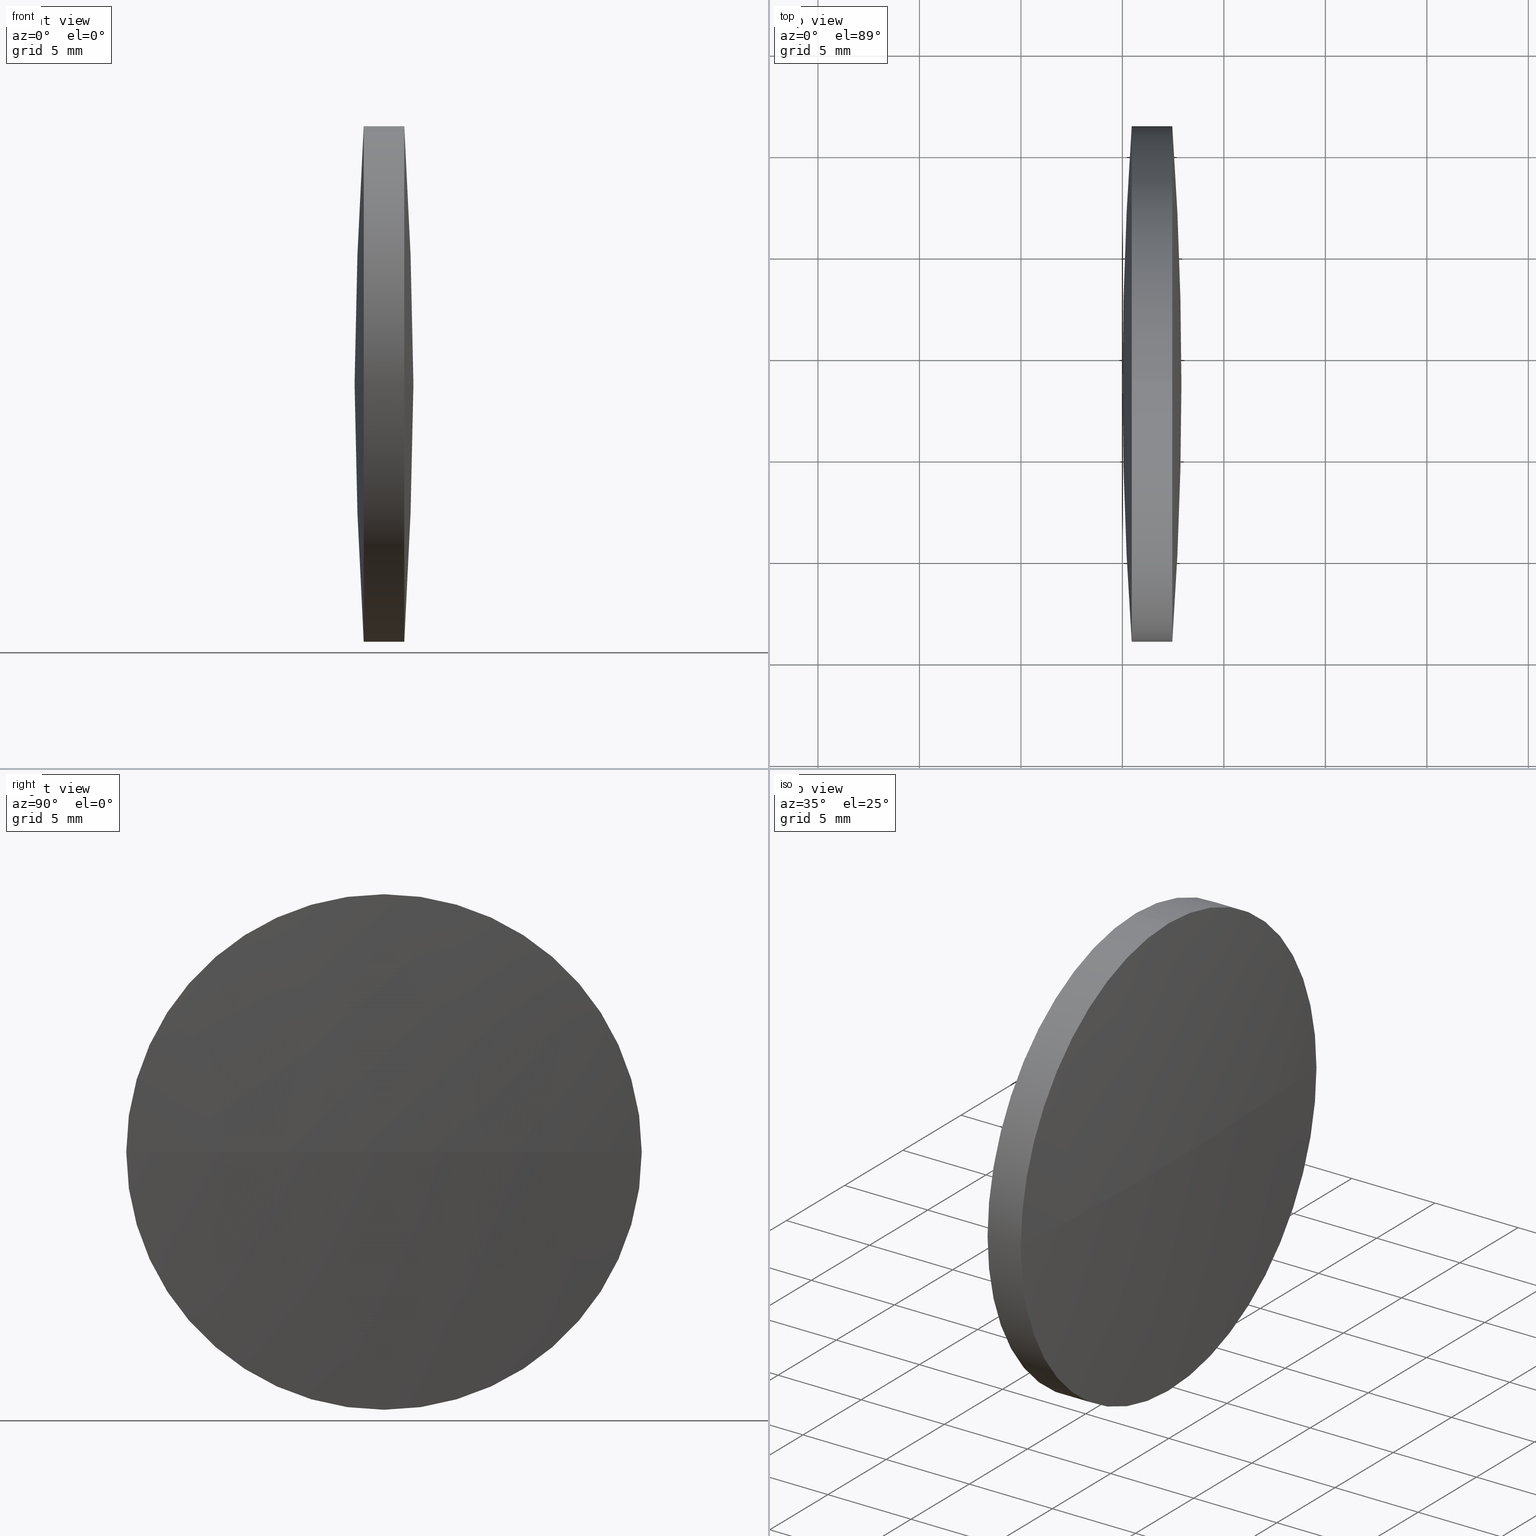
[diagram: canonical four-view strip — front | top / right | iso, engineering-drawing reading convention]
A machine part, canonical four-view strip (front | top / right | iso — engineering-drawing reading convention). The complete STEP part file that produces these views, byte-faithful:
ISO-10303-21;
HEADER;
FILE_DESCRIPTION (( 'STEP AP203' ),
    '1' );
FILE_NAME ('110143.STEP',
    '2019-07-08T09:31:07',
    ( '' ),
    ( '' ),
    'SwSTEP 2.0',
    'SolidWorks 2016',
    '' );
FILE_SCHEMA (( 'CONFIG_CONTROL_DESIGN' ));
ENDSEC;

DATA;
#1 = CALENDAR_DATE ( 2019, 8, 7 ) ;
#2 = FACE_OUTER_BOUND ( 'NONE', #178, .T. ) ;
#3 = ORIENTED_EDGE ( 'NONE', *, *, #337, .T. ) ;
#4 = LOCAL_TIME ( 17, 31, 7.000000000000000000, #226 ) ;
#5 = PRODUCT_DEFINITION ( 'δ֪', '', #67, #293 ) ;
#6 = LOCAL_TIME ( 17, 31, 7.000000000000000000, #130 ) ;
#7 = EDGE_CURVE ( 'NONE', #18, #333, #209, .T. ) ;
#8 = CYLINDRICAL_SURFACE ( 'NONE', #82, 12.69999999999999600 ) ;
#9 = ORIENTED_EDGE ( 'NONE', *, *, #265, .F. ) ;
#10 = APPROVAL ( #313, 'δָ��' ) ;
#11 = DIRECTION ( 'NONE',  ( -1.000000000000000000, -0.0000000000000000000, -0.0000000000000000000 ) ) ;
#12 = COORDINATED_UNIVERSAL_TIME_OFFSET ( 8, 0, .AHEAD. ) ;
#13 = EDGE_CURVE ( 'NONE', #88, #316, #131, .T. ) ;
#14 = DESIGN_CONTEXT ( 'detailed design', #228, 'design' ) ;
#15 = PERSON_AND_ORGANIZATION_ROLE ( 'classification_officer' ) ;
#16 = COORDINATED_UNIVERSAL_TIME_OFFSET ( 8, 0, .AHEAD. ) ;
#17 = PERSON_AND_ORGANIZATION ( #61, #50 ) ;
#18 = VERTEX_POINT ( 'NONE', #232 ) ;
#19 = APPROVAL_STATUS ( 'not_yet_approved' ) ;
#20 = DATE_AND_TIME ( #152, #102 ) ;
#21 = CARTESIAN_POINT ( 'NONE',  ( 87.90817091751966900, 48.61611302318490100, 0.0000000000000000000 ) ) ;
#22 = ORIENTED_EDGE ( 'NONE', *, *, #341, .T. ) ;
#23 = APPLICATION_PROTOCOL_DEFINITION ( 'international standard', 'config_control_design', 1994, #261 ) ;
#24 = CARTESIAN_POINT ( 'NONE',  ( 264.3228134857245100, 48.61611302318468800, 0.0000000000000000000 ) ) ;
#25 = DATE_AND_TIME ( #116, #213 ) ;
#26 = LINE ( 'NONE', #294, #201 ) ;
#27 = EDGE_CURVE ( 'NONE', #310, #57, #243, .T. ) ;
#28 = ADVANCED_FACE ( 'NONE', ( #147 ), #117, .T. ) ;
#29 = DIRECTION ( 'NONE',  ( 0.0000000000000000000, -1.000000000000000000, -1.224646799147353000E-016 ) ) ;
#30 = COORDINATED_UNIVERSAL_TIME_OFFSET ( 8, 0, .AHEAD. ) ;
#31 = CARTESIAN_POINT ( 'NONE',  ( 264.3228134857245100, 48.61611302318468800, 0.0000000000000000000 ) ) ;
#32 = CARTESIAN_POINT ( 'NONE',  ( 85.45852234609110100, 35.91611302318484200, -1.555301434917118900E-015 ) ) ;
#33 = PERSON_AND_ORGANIZATION ( #61, #50 ) ;
#34 = ORIENTED_EDGE ( 'NONE', *, *, #341, .F. ) ;
#35 = APPROVAL_ROLE ( '' ) ;
#36 = APPROVAL ( #324, 'δָ��' ) ;
#37 = DIRECTION ( 'NONE',  ( -1.000000000000000000, -0.0000000000000000000, -0.0000000000000000000 ) ) ;
#38 = UNCERTAINTY_MEASURE_WITH_UNIT (LENGTH_MEASURE( 1.000000000000000100E-005 ), #230, 'distance_accuracy_value', 'NONE');
#39 = CIRCLE ( 'NONE', #160, 12.69999999999999600 ) ;
#40 =( NAMED_UNIT ( * ) PLANE_ANGLE_UNIT ( ) SI_UNIT ( $, .RADIAN. ) );
#41 = PERSON_AND_ORGANIZATION ( #61, #50 ) ;
#42 = CC_DESIGN_PERSON_AND_ORGANIZATION_ASSIGNMENT ( #17, #335, ( #198 ) ) ;
#43 = ORIENTED_EDGE ( 'NONE', *, *, #302, .F. ) ;
#44 = VERTEX_POINT ( 'NONE', #21 ) ;
#45 = DATE_TIME_ROLE ( 'creation_date' ) ;
#46 = PERSON_AND_ORGANIZATION ( #61, #50 ) ;
#47 = ORIENTED_EDGE ( 'NONE', *, *, #273, .F. ) ;
#48 =( GEOMETRIC_REPRESENTATION_CONTEXT ( 3 ) GLOBAL_UNCERTAINTY_ASSIGNED_CONTEXT ( ( #38 ) ) GLOBAL_UNIT_ASSIGNED_CONTEXT ( ( #230, #40, #223 ) ) REPRESENTATION_CONTEXT ( 'NONE', 'WORKASPACE' ) );
#49 = DIRECTION ( 'NONE',  ( 0.0000000000000000000, 0.0000000000000000000, 1.000000000000000000 ) ) ;
#50 = ORGANIZATION ( 'δָ��', 'δָ��', '' ) ;
#51 = ADVANCED_FACE ( 'NONE', ( #125 ), #172, .T. ) ;
#52 = AXIS2_PLACEMENT_3D ( 'NONE', #331, #199, #235 ) ;
#53 = LOCAL_TIME ( 17, 31, 7.000000000000000000, #174 ) ;
#54 = CIRCLE ( 'NONE', #175, 179.3145968539190800 ) ;
#55 = AXIS2_PLACEMENT_3D ( 'NONE', #242, #166, #325 ) ;
#56 = CARTESIAN_POINT ( 'NONE',  ( 85.45852234609111500, 48.61611302318478100, 0.0000000000000000000 ) ) ;
#57 = VERTEX_POINT ( 'NONE', #277 ) ;
#58 = CARTESIAN_POINT ( 'NONE',  ( 87.45786520323396500, 61.31611302318459900, 1.555301434917100400E-015 ) ) ;
#59 = VERTEX_POINT ( 'NONE', #63 ) ;
#60 = CARTESIAN_POINT ( 'NONE',  ( -91.40642593639381600, 48.61611302318491600, 0.0000000000000000000 ) ) ;
#61 = PERSON ( 'δָ��', 'δָ��', 'δָ��', ('δָ��'), ('δָ��'), ('δָ��') ) ;
#62 = AXIS2_PLACEMENT_3D ( 'NONE', #159, #233, #180 ) ;
#63 = CARTESIAN_POINT ( 'NONE',  ( 85.00821663180541100, 48.61611302318470300, 0.0000000000000000000 ) ) ;
#64 = PERSON_AND_ORGANIZATION_ROLE ( 'design_supplier' ) ;
#65 = LOCAL_TIME ( 17, 31, 7.000000000000000000, #70 ) ;
#66 = SECURITY_CLASSIFICATION_LEVEL ( 'unclassified' ) ;
#67 = PRODUCT_DEFINITION_FORMATION_WITH_SPECIFIED_SOURCE ( '�κ�', '', #315, .NOT_KNOWN. ) ;
#68 = ORIENTED_EDGE ( 'NONE', *, *, #265, .T. ) ;
#69 = DIRECTION ( 'NONE',  ( 1.000000000000000000, 0.0000000000000000000, 0.0000000000000000000 ) ) ;
#70 = COORDINATED_UNIVERSAL_TIME_OFFSET ( 8, 0, .AHEAD. ) ;
#71 = ORIENTED_EDGE ( 'NONE', *, *, #285, .T. ) ;
#72 = DIRECTION ( 'NONE',  ( 1.000000000000000000, 0.0000000000000000000, 0.0000000000000000000 ) ) ;
#73 = DIRECTION ( 'NONE',  ( -0.0000000000000000000, 0.0000000000000000000, -1.000000000000000000 ) ) ;
#74 = APPLICATION_CONTEXT ( 'configuration controlled 3d designs of mechanical parts and assemblies' ) ;
#75 = CC_DESIGN_PERSON_AND_ORGANIZATION_ASSIGNMENT ( #270, #292, ( #186 ) ) ;
#76 = APPROVAL_PERSON_ORGANIZATION ( #46, #10, #275 ) ;
#77 = PERSON_AND_ORGANIZATION ( #61, #50 ) ;
#78 = ORIENTED_EDGE ( 'NONE', *, *, #149, .F. ) ;
#79 = CC_DESIGN_PERSON_AND_ORGANIZATION_ASSIGNMENT ( #342, #195, ( #67 ) ) ;
#80 = LOCAL_TIME ( 17, 31, 7.000000000000000000, #30 ) ;
#81 = ORIENTED_EDGE ( 'NONE', *, *, #273, .T. ) ;
#82 = AXIS2_PLACEMENT_3D ( 'NONE', #100, #262, #211 ) ;
#83 = DIRECTION ( 'NONE',  ( 0.0000000000000000000, 0.0000000000000000000, 1.000000000000000000 ) ) ;
#84 = APPLICATION_PROTOCOL_DEFINITION ( 'international standard', 'config_control_design', 1994, #189 ) ;
#85 = DATE_AND_TIME ( #93, #4 ) ;
#86 = VECTOR ( 'NONE', #37, 1000.000000000000000 ) ;
#87 = DIRECTION ( 'NONE',  ( 0.0000000000000000000, -1.000000000000000000, 0.0000000000000000000 ) ) ;
#88 = VERTEX_POINT ( 'NONE', #58 ) ;
#89 = DATE_TIME_ROLE ( 'classification_date' ) ;
#90 = CC_DESIGN_APPROVAL ( #192, ( #5 ) ) ;
#91 = DIRECTION ( 'NONE',  ( 0.0000000000000000000, 0.0000000000000000000, 1.000000000000000000 ) ) ;
#92 = CARTESIAN_POINT ( 'NONE',  ( 264.3228134857245100, 48.61611302318468800, 0.0000000000000000000 ) ) ;
#93 = CALENDAR_DATE ( 2019, 8, 7 ) ;
#94 = MANIFOLD_SOLID_BREP ( '��ת1', #339 ) ;
#95 = ORIENTED_EDGE ( 'NONE', *, *, #13, .F. ) ;
#96 = CARTESIAN_POINT ( 'NONE',  ( 87.45786520323396500, 48.61611302318478100, 0.0000000000000000000 ) ) ;
#97 = CARTESIAN_POINT ( 'NONE',  ( 87.45786520323396500, 48.61611302318478100, 0.0000000000000000000 ) ) ;
#98 = CALENDAR_DATE ( 2019, 8, 7 ) ;
#99 = APPLICATION_PROTOCOL_DEFINITION ( 'international standard', 'config_control_design', 1994, #74 ) ;
#100 = CARTESIAN_POINT ( 'NONE',  ( 79.30540135083715800, 48.61611302318478100, 0.0000000000000000000 ) ) ;
#101 = SECURITY_CLASSIFICATION ( '', '', #66 ) ;
#102 = LOCAL_TIME ( 17, 31, 7.000000000000000000, #153 ) ;
#103 = APPROVAL_ROLE ( '' ) ;
#104 = AXIS2_PLACEMENT_3D ( 'NONE', #56, #266, #115 ) ;
#105 = APPROVAL_PERSON_ORGANIZATION ( #181, #158, #148 ) ;
#106 = DIRECTION ( 'NONE',  ( 0.0000000000000000000, 1.224646799147353200E-016, -1.000000000000000000 ) ) ;
#107 = PERSON_AND_ORGANIZATION_ROLE ( 'creator' ) ;
#108 = ORIENTED_EDGE ( 'NONE', *, *, #149, .T. ) ;
#109 = DIRECTION ( 'NONE',  ( -1.000000000000000000, -0.0000000000000000000, -0.0000000000000000000 ) ) ;
#110 = PRODUCT_DEFINITION ( 'δ֪', '', #186, #14 ) ;
#111 = FACE_OUTER_BOUND ( 'NONE', #289, .T. ) ;
#112 = ORIENTED_EDGE ( 'NONE', *, *, #7, .F. ) ;
#113 = CARTESIAN_POINT ( 'NONE',  ( 87.45786520323396500, 35.91611302318509000, 0.0000000000000000000 ) ) ;
#114 = PERSON_AND_ORGANIZATION_ROLE ( 'classification_officer' ) ;
#115 = DIRECTION ( 'NONE',  ( 0.0000000000000000000, 0.0000000000000000000, 1.000000000000000000 ) ) ;
#116 = CALENDAR_DATE ( 2019, 8, 7 ) ;
#117 = SPHERICAL_SURFACE ( 'NONE', #55, 179.3145968539134900 ) ;
#118 = APPROVAL_ROLE ( '' ) ;
#119 = CYLINDRICAL_SURFACE ( 'NONE', #52, 12.69999999999999600 ) ;
#120 = DIRECTION ( 'NONE',  ( 0.0000000000000000000, 0.0000000000000000000, -1.000000000000000000 ) ) ;
#121 = ORIENTED_EDGE ( 'NONE', *, *, #302, .T. ) ;
#122 = CC_DESIGN_PERSON_AND_ORGANIZATION_ASSIGNMENT ( #196, #15, ( #101 ) ) ;
#123 = AXIS2_PLACEMENT_3D ( 'NONE', #139, #83, #87 ) ;
#124 = APPROVAL_DATE_TIME ( #140, #36 ) ;
#125 = FACE_OUTER_BOUND ( 'NONE', #268, .T. ) ;
#126 = EDGE_CURVE ( 'NONE', #316, #333, #327, .T. ) ;
#127 = APPLICATION_PROTOCOL_DEFINITION ( 'international standard', 'config_control_design', 1994, #228 ) ;
#128 = EDGE_CURVE ( 'NONE', #229, #176, #39, .T. ) ;
#129 = DIRECTION ( 'NONE',  ( -1.000000000000000000, -0.0000000000000000000, -0.0000000000000000000 ) ) ;
#130 = COORDINATED_UNIVERSAL_TIME_OFFSET ( 8, 0, .AHEAD. ) ;
#131 = CIRCLE ( 'NONE', #207, 12.69999999999999600 ) ;
#132 = CC_DESIGN_DATE_AND_TIME_ASSIGNMENT ( #165, #252, ( #101 ) ) ;
#133 = DIRECTION ( 'NONE',  ( 0.0000000000000000000, 1.000000000000000000, 1.224646799147353200E-016 ) ) ;
#134 = DATE_AND_TIME ( #1, #278 ) ;
#135 = ORIENTED_EDGE ( 'NONE', *, *, #7, .T. ) ;
#136 = ADVANCED_FACE ( 'NONE', ( #323 ), #119, .T. ) ;
#137 = CC_DESIGN_PERSON_AND_ORGANIZATION_ASSIGNMENT ( #150, #269, ( #5 ) ) ;
#138 = APPROVAL_STATUS ( 'not_yet_approved' ) ;
#139 = CARTESIAN_POINT ( 'NONE',  ( -91.40642593639381600, 48.61611302318491600, 0.0000000000000000000 ) ) ;
#140 = DATE_AND_TIME ( #204, #274 ) ;
#141 = AXIS2_PLACEMENT_3D ( 'NONE', #92, #272, #312 ) ;
#142 = FACE_OUTER_BOUND ( 'NONE', #284, .T. ) ;
#143 = DIRECTION ( 'NONE',  ( -1.000000000000000000, -0.0000000000000000000, -0.0000000000000000000 ) ) ;
#144 = AXIS2_PLACEMENT_3D ( 'NONE', #194, #224, #220 ) ;
#145 = DIRECTION ( 'NONE',  ( 0.0000000000000000000, 0.0000000000000000000, 1.000000000000000000 ) ) ;
#146 = PERSON_AND_ORGANIZATION ( #61, #50 ) ;
#147 = FACE_OUTER_BOUND ( 'NONE', #197, .T. ) ;
#148 = APPROVAL_ROLE ( '' ) ;
#149 = EDGE_CURVE ( 'NONE', #316, #229, #188, .T. ) ;
#150 = PERSON_AND_ORGANIZATION ( #61, #50 ) ;
#151 = MECHANICAL_CONTEXT ( 'NONE', #74, 'mechanical' ) ;
#152 = CALENDAR_DATE ( 2019, 8, 7 ) ;
#153 = COORDINATED_UNIVERSAL_TIME_OFFSET ( 8, 0, .AHEAD. ) ;
#154 = ORIENTED_EDGE ( 'NONE', *, *, #337, .F. ) ;
#155 = EDGE_CURVE ( 'NONE', #44, #88, #309, .T. ) ;
#156 = APPROVAL_PERSON_ORGANIZATION ( #187, #36, #118 ) ;
#157 = EDGE_LOOP ( 'NONE', ( #343, #108, #263, #81, #296, #210 ) ) ;
#158 = APPROVAL ( #138, 'δָ��' ) ;
#159 = CARTESIAN_POINT ( 'NONE',  ( 87.45786520323396500, 48.61611302318478100, 0.0000000000000000000 ) ) ;
#160 = AXIS2_PLACEMENT_3D ( 'NONE', #96, #202, #206 ) ;
#161 = CALENDAR_DATE ( 2019, 8, 7 ) ;
#162 = DIRECTION ( 'NONE',  ( -1.000000000000000000, -0.0000000000000000000, -0.0000000000000000000 ) ) ;
#163 = ADVANCED_FACE ( 'NONE', ( #2 ), #170, .T. ) ;
#164 = DIRECTION ( 'NONE',  ( 0.0000000000000000000, -1.224646799147353200E-016, 1.000000000000000000 ) ) ;
#165 = DATE_AND_TIME ( #98, #6 ) ;
#166 = DIRECTION ( 'NONE',  ( 0.0000000000000000000, 0.0000000000000000000, 1.000000000000000000 ) ) ;
#167 = CARTESIAN_POINT ( 'NONE',  ( 85.45852234609111500, 48.61611302318478100, 0.0000000000000000000 ) ) ;
#168 = APPROVAL_DATE_TIME ( #217, #158 ) ;
#169 = CC_DESIGN_PERSON_AND_ORGANIZATION_ASSIGNMENT ( #33, #64, ( #67 ) ) ;
#170 = SPHERICAL_SURFACE ( 'NONE', #314, 179.3145968539190800 ) ;
#171 = AXIS2_PLACEMENT_3D ( 'NONE', #299, #185, #215 ) ;
#172 = SPHERICAL_SURFACE ( 'NONE', #144, 179.3145968539190800 ) ;
#173 = CC_DESIGN_APPROVAL ( #158, ( #67 ) ) ;
#174 = COORDINATED_UNIVERSAL_TIME_OFFSET ( 8, 0, .AHEAD. ) ;
#175 = AXIS2_PLACEMENT_3D ( 'NONE', #31, #106, #133 ) ;
#176 = VERTEX_POINT ( 'NONE', #179 ) ;
#177 = APPROVAL_ROLE ( '' ) ;
#178 = EDGE_LOOP ( 'NONE', ( #317, #246, #121, #3 ) ) ;
#179 = CARTESIAN_POINT ( 'NONE',  ( 87.45786520323396500, 48.61611302318478100, 12.69999999999999600 ) ) ;
#180 = DIRECTION ( 'NONE',  ( 0.0000000000000000000, 0.0000000000000000000, 1.000000000000000000 ) ) ;
#181 = PERSON_AND_ORGANIZATION ( #61, #50 ) ;
#182 = CC_DESIGN_APPROVAL ( #10, ( #101 ) ) ;
#183 = PERSON_AND_ORGANIZATION_ROLE ( 'creator' ) ;
#184 = ADVANCED_FACE ( 'NONE', ( #111 ), #8, .T. ) ;
#185 = DIRECTION ( 'NONE',  ( -1.000000000000000000, -0.0000000000000000000, -0.0000000000000000000 ) ) ;
#186 = PRODUCT_DEFINITION_FORMATION_WITH_SPECIFIED_SOURCE ( '�κ�', '', #198, .NOT_KNOWN. ) ;
#187 = PERSON_AND_ORGANIZATION ( #61, #50 ) ;
#188 = CIRCLE ( 'NONE', #62, 12.69999999999999600 ) ;
#189 = APPLICATION_CONTEXT ( 'configuration controlled 3d designs of mechanical parts and assemblies' ) ;
#190 = DATE_TIME_ROLE ( 'creation_date' ) ;
#191 = CARTESIAN_POINT ( 'NONE',  ( 79.30540135083715800, 48.61611302318478100, -12.69999999999999600 ) ) ;
#192 = APPROVAL ( #326, 'δָ��' ) ;
#193 = CIRCLE ( 'NONE', #328, 12.69999999999999600 ) ;
#194 = CARTESIAN_POINT ( 'NONE',  ( 264.3228134857245100, 48.61611302318468800, 0.0000000000000000000 ) ) ;
#195 = PERSON_AND_ORGANIZATION_ROLE ( 'creator' ) ;
#196 = PERSON_AND_ORGANIZATION ( #61, #50 ) ;
#197 = EDGE_LOOP ( 'NONE', ( #320, #22, #78, #95 ) ) ;
#198 = PRODUCT ( '110143', '110143', '', ( #151 ) ) ;
#199 = DIRECTION ( 'NONE',  ( -1.000000000000000000, -0.0000000000000000000, -0.0000000000000000000 ) ) ;
#200 = COORDINATED_UNIVERSAL_TIME_OFFSET ( 8, 0, .AHEAD. ) ;
#201 = VECTOR ( 'NONE', #162, 1000.000000000000000 ) ;
#202 = DIRECTION ( 'NONE',  ( -1.000000000000000000, -0.0000000000000000000, -0.0000000000000000000 ) ) ;
#203 = CC_DESIGN_APPROVAL ( #276, ( #110 ) ) ;
#204 = CALENDAR_DATE ( 2019, 8, 7 ) ;
#205 = CC_DESIGN_SECURITY_CLASSIFICATION ( #101, ( #67 ) ) ;
#206 = DIRECTION ( 'NONE',  ( 0.0000000000000000000, 0.0000000000000000000, 1.000000000000000000 ) ) ;
#207 = AXIS2_PLACEMENT_3D ( 'NONE', #97, #109, #290 ) ;
#208 = PERSON_AND_ORGANIZATION ( #61, #50 ) ;
#209 = CIRCLE ( 'NONE', #241, 12.69999999999999600 ) ;
#210 = ORIENTED_EDGE ( 'NONE', *, *, #285, .F. ) ;
#211 = DIRECTION ( 'NONE',  ( 0.0000000000000000000, 0.0000000000000000000, 1.000000000000000000 ) ) ;
#212 = AXIS2_PLACEMENT_3D ( 'NONE', #167, #11, #91 ) ;
#213 = LOCAL_TIME ( 17, 31, 7.000000000000000000, #16 ) ;
#214 = CARTESIAN_POINT ( 'NONE',  ( 87.45786520323396500, 48.61611302318478100, -12.69999999999999600 ) ) ;
#215 = DIRECTION ( 'NONE',  ( 0.0000000000000000000, 0.0000000000000000000, 1.000000000000000000 ) ) ;
#216 = AXIS2_PLACEMENT_3D ( 'NONE', #305, #307, #72 ) ;
#217 = DATE_AND_TIME ( #286, #65 ) ;
#218 = APPROVAL_PERSON_ORGANIZATION ( #77, #192, #35 ) ;
#219 = ORIENTED_EDGE ( 'NONE', *, *, #155, .T. ) ;
#220 = DIRECTION ( 'NONE',  ( 0.0000000000000000000, 1.000000000000000000, 0.0000000000000000000 ) ) ;
#221 = CC_DESIGN_APPROVAL ( #249, ( #186 ) ) ;
#222 = DATE_AND_TIME ( #295, #53 ) ;
#223 =( NAMED_UNIT ( * ) SI_UNIT ( $, .STERADIAN. ) SOLID_ANGLE_UNIT ( ) );
#224 = DIRECTION ( 'NONE',  ( -0.0000000000000000000, 0.0000000000000000000, -1.000000000000000000 ) ) ;
#225 = CC_DESIGN_DATE_AND_TIME_ASSIGNMENT ( #222, #89, ( #287 ) ) ;
#226 = COORDINATED_UNIVERSAL_TIME_OFFSET ( 8, 0, .AHEAD. ) ;
#227 = AXIS2_PLACEMENT_3D ( 'NONE', #303, #236, #69 ) ;
#228 = APPLICATION_CONTEXT ( 'configuration controlled 3d designs of mechanical parts and assemblies' ) ;
#229 = VERTEX_POINT ( 'NONE', #113 ) ;
#230 =( LENGTH_UNIT ( ) NAMED_UNIT ( * ) SI_UNIT ( .MILLI., .METRE. ) );
#231 = CC_DESIGN_DATE_AND_TIME_ASSIGNMENT ( #301, #190, ( #5 ) ) ;
#232 = CARTESIAN_POINT ( 'NONE',  ( 85.45852234609110100, 61.31611302318462700, 0.0000000000000000000 ) ) ;
#233 = DIRECTION ( 'NONE',  ( -1.000000000000000000, -0.0000000000000000000, -0.0000000000000000000 ) ) ;
#234 = PERSON_AND_ORGANIZATION ( #61, #50 ) ;
#235 = DIRECTION ( 'NONE',  ( 0.0000000000000000000, 0.0000000000000000000, 1.000000000000000000 ) ) ;
#236 = DIRECTION ( 'NONE',  ( 0.0000000000000000000, 0.0000000000000000000, 1.000000000000000000 ) ) ;
#237 = APPROVAL_STATUS ( 'not_yet_approved' ) ;
#238 = APPROVAL_DATE_TIME ( #134, #10 ) ;
#239 = CIRCLE ( 'NONE', #247, 179.3145968539134900 ) ;
#240 = CC_DESIGN_PERSON_AND_ORGANIZATION_ASSIGNMENT ( #146, #183, ( #110 ) ) ;
#241 = AXIS2_PLACEMENT_3D ( 'NONE', #283, #129, #49 ) ;
#242 = CARTESIAN_POINT ( 'NONE',  ( -91.40642593639381600, 48.61611302318491600, 0.0000000000000000000 ) ) ;
#243 = CIRCLE ( 'NONE', #171, 12.69999999999999600 ) ;
#244 = CC_DESIGN_APPROVAL ( #36, ( #287 ) ) ;
#245 = DATE_AND_TIME ( #161, #80 ) ;
#246 = ORIENTED_EDGE ( 'NONE', *, *, #27, .T. ) ;
#247 = AXIS2_PLACEMENT_3D ( 'NONE', #60, #120, #330 ) ;
#248 = EDGE_CURVE ( 'NONE', #310, #59, #54, .T. ) ;
#249 = APPROVAL ( #237, 'δָ��' ) ;
#250 = SHAPE_DEFINITION_REPRESENTATION ( #334, #259 ) ;
#251 = ORIENTED_EDGE ( 'NONE', *, *, #13, .T. ) ;
#252 = DATE_TIME_ROLE ( 'classification_date' ) ;
#253 = APPROVAL_DATE_TIME ( #20, #192 ) ;
#254 = CIRCLE ( 'NONE', #212, 12.69999999999999600 ) ;
#255 = CC_DESIGN_PERSON_AND_ORGANIZATION_ASSIGNMENT ( #208, #107, ( #186 ) ) ;
#256 = SPHERICAL_SURFACE ( 'NONE', #123, 179.3145968539134900 ) ;
#257 = ORIENTED_EDGE ( 'NONE', *, *, #248, .T. ) ;
#258 = APPROVAL_PERSON_ORGANIZATION ( #306, #249, #103 ) ;
#259 = ADVANCED_BREP_SHAPE_REPRESENTATION ( '110143', ( #94, #216 ), #48 ) ;
#260 = CARTESIAN_POINT ( 'NONE',  ( -91.40642593639381600, 48.61611302318491600, 0.0000000000000000000 ) ) ;
#261 = APPLICATION_CONTEXT ( 'configuration controlled 3d designs of mechanical parts and assemblies' ) ;
#262 = DIRECTION ( 'NONE',  ( -1.000000000000000000, -0.0000000000000000000, -0.0000000000000000000 ) ) ;
#263 = ORIENTED_EDGE ( 'NONE', *, *, #128, .T. ) ;
#264 = CC_DESIGN_PERSON_AND_ORGANIZATION_ASSIGNMENT ( #288, #281, ( #315 ) ) ;
#265 = EDGE_CURVE ( 'NONE', #176, #88, #193, .T. ) ;
#266 = DIRECTION ( 'NONE',  ( -1.000000000000000000, -0.0000000000000000000, -0.0000000000000000000 ) ) ;
#267 = LOCAL_TIME ( 17, 31, 7.000000000000000000, #200 ) ;
#268 = EDGE_LOOP ( 'NONE', ( #135, #71, #257, #154 ) ) ;
#269 = PERSON_AND_ORGANIZATION_ROLE ( 'creator' ) ;
#270 = PERSON_AND_ORGANIZATION ( #61, #50 ) ;
#271 = CIRCLE ( 'NONE', #104, 12.69999999999999600 ) ;
#272 = DIRECTION ( 'NONE',  ( -0.0000000000000000000, 0.0000000000000000000, 1.000000000000000000 ) ) ;
#273 = EDGE_CURVE ( 'NONE', #176, #57, #26, .T. ) ;
#274 = LOCAL_TIME ( 17, 31, 7.000000000000000000, #12 ) ;
#275 = APPROVAL_ROLE ( '' ) ;
#276 = APPROVAL ( #19, 'δָ��' ) ;
#277 = CARTESIAN_POINT ( 'NONE',  ( 85.45852234609111500, 48.61611302318478100, 12.69999999999999600 ) ) ;
#278 = LOCAL_TIME ( 17, 31, 7.000000000000000000, #308 ) ;
#279 = ORIENTED_EDGE ( 'NONE', *, *, #128, .F. ) ;
#280 = CC_DESIGN_PERSON_AND_ORGANIZATION_ASSIGNMENT ( #234, #114, ( #287 ) ) ;
#281 = PERSON_AND_ORGANIZATION_ROLE ( 'design_owner' ) ;
#282 = APPROVAL_PERSON_ORGANIZATION ( #41, #276, #177 ) ;
#283 = CARTESIAN_POINT ( 'NONE',  ( 85.45852234609111500, 48.61611302318478100, 0.0000000000000000000 ) ) ;
#284 = EDGE_LOOP ( 'NONE', ( #34, #219, #9, #279 ) ) ;
#285 = EDGE_CURVE ( 'NONE', #333, #310, #271, .T. ) ;
#286 = CALENDAR_DATE ( 2019, 8, 7 ) ;
#287 = SECURITY_CLASSIFICATION ( '', '', #321 ) ;
#288 = PERSON_AND_ORGANIZATION ( #61, #50 ) ;
#289 = EDGE_LOOP ( 'NONE', ( #251, #329, #112, #43, #47, #68 ) ) ;
#290 = DIRECTION ( 'NONE',  ( 0.0000000000000000000, 0.0000000000000000000, 1.000000000000000000 ) ) ;
#291 = AXIS2_PLACEMENT_3D ( 'NONE', #260, #164, #29 ) ;
#292 = PERSON_AND_ORGANIZATION_ROLE ( 'design_supplier' ) ;
#293 = DESIGN_CONTEXT ( 'detailed design', #189, 'design' ) ;
#294 = CARTESIAN_POINT ( 'NONE',  ( 79.30540135083715800, 48.61611302318478100, 12.69999999999999600 ) ) ;
#295 = CALENDAR_DATE ( 2019, 8, 7 ) ;
#296 = ORIENTED_EDGE ( 'NONE', *, *, #27, .F. ) ;
#297 = CARTESIAN_POINT ( 'NONE',  ( 85.45852234609111500, 48.61611302318478100, -12.69999999999999600 ) ) ;
#298 = ADVANCED_FACE ( 'NONE', ( #142 ), #256, .T. ) ;
#299 = CARTESIAN_POINT ( 'NONE',  ( 85.45852234609111500, 48.61611302318478100, 0.0000000000000000000 ) ) ;
#300 = CARTESIAN_POINT ( 'NONE',  ( 87.45786520323396500, 48.61611302318478100, 0.0000000000000000000 ) ) ;
#301 = DATE_AND_TIME ( #322, #267 ) ;
#302 = EDGE_CURVE ( 'NONE', #57, #18, #254, .T. ) ;
#303 = CARTESIAN_POINT ( 'NONE',  ( 0.0000000000000000000, 0.0000000000000000000, 0.0000000000000000000 ) ) ;
#304 = CC_DESIGN_SECURITY_CLASSIFICATION ( #287, ( #186 ) ) ;
#305 = CARTESIAN_POINT ( 'NONE',  ( 0.0000000000000000000, 0.0000000000000000000, 0.0000000000000000000 ) ) ;
#306 = PERSON_AND_ORGANIZATION ( #61, #50 ) ;
#307 = DIRECTION ( 'NONE',  ( 0.0000000000000000000, 0.0000000000000000000, 1.000000000000000000 ) ) ;
#308 = COORDINATED_UNIVERSAL_TIME_OFFSET ( 8, 0, .AHEAD. ) ;
#309 = CIRCLE ( 'NONE', #291, 179.3145968539134900 ) ;
#310 = VERTEX_POINT ( 'NONE', #32 ) ;
#311 = PRODUCT_RELATED_PRODUCT_CATEGORY ( 'detail', '', ( #198 ) ) ;
#312 = DIRECTION ( 'NONE',  ( 1.000000000000000000, 0.0000000000000000000, 0.0000000000000000000 ) ) ;
#313 = APPROVAL_STATUS ( 'not_yet_approved' ) ;
#314 = AXIS2_PLACEMENT_3D ( 'NONE', #24, #73, #345 ) ;
#315 = PRODUCT ( '110143', '110143', '', ( #319 ) ) ;
#316 = VERTEX_POINT ( 'NONE', #214 ) ;
#317 = ORIENTED_EDGE ( 'NONE', *, *, #248, .F. ) ;
#318 = APPROVAL_DATE_TIME ( #25, #276 ) ;
#319 = MECHANICAL_CONTEXT ( 'NONE', #261, 'mechanical' ) ;
#320 = ORIENTED_EDGE ( 'NONE', *, *, #155, .F. ) ;
#321 = SECURITY_CLASSIFICATION_LEVEL ( 'unclassified' ) ;
#322 = CALENDAR_DATE ( 2019, 8, 7 ) ;
#323 = FACE_OUTER_BOUND ( 'NONE', #157, .T. ) ;
#324 = APPROVAL_STATUS ( 'not_yet_approved' ) ;
#325 = DIRECTION ( 'NONE',  ( 0.0000000000000000000, -1.000000000000000000, 0.0000000000000000000 ) ) ;
#326 = APPROVAL_STATUS ( 'not_yet_approved' ) ;
#327 = LINE ( 'NONE', #191, #86 ) ;
#328 = AXIS2_PLACEMENT_3D ( 'NONE', #300, #143, #145 ) ;
#329 = ORIENTED_EDGE ( 'NONE', *, *, #126, .T. ) ;
#330 = DIRECTION ( 'NONE',  ( -1.000000000000000000, 0.0000000000000000000, 0.0000000000000000000 ) ) ;
#331 = CARTESIAN_POINT ( 'NONE',  ( 79.30540135083715800, 48.61611302318478100, 0.0000000000000000000 ) ) ;
#332 = APPROVAL_DATE_TIME ( #85, #249 ) ;
#333 = VERTEX_POINT ( 'NONE', #297 ) ;
#334 = PRODUCT_DEFINITION_SHAPE ( 'NONE', 'NONE',  #110 ) ;
#335 = PERSON_AND_ORGANIZATION_ROLE ( 'design_owner' ) ;
#336 = PRODUCT_RELATED_PRODUCT_CATEGORY ( 'detail', '', ( #315 ) ) ;
#337 = EDGE_CURVE ( 'NONE', #18, #59, #338, .T. ) ;
#338 = CIRCLE ( 'NONE', #141, 179.3145968539190800 ) ;
#339 = CLOSED_SHELL ( 'NONE', ( #184, #298, #51, #163, #28, #136 ) ) ;
#340 = PRODUCT_DEFINITION_SHAPE ( 'NONE', 'NONE',  #5 ) ;
#341 = EDGE_CURVE ( 'NONE', #44, #229, #239, .T. ) ;
#342 = PERSON_AND_ORGANIZATION ( #61, #50 ) ;
#343 = ORIENTED_EDGE ( 'NONE', *, *, #126, .F. ) ;
#344 = CC_DESIGN_DATE_AND_TIME_ASSIGNMENT ( #245, #45, ( #110 ) ) ;
#345 = DIRECTION ( 'NONE',  ( 0.0000000000000000000, 1.000000000000000000, 0.0000000000000000000 ) ) ;
ENDSEC;
END-ISO-10303-21;
